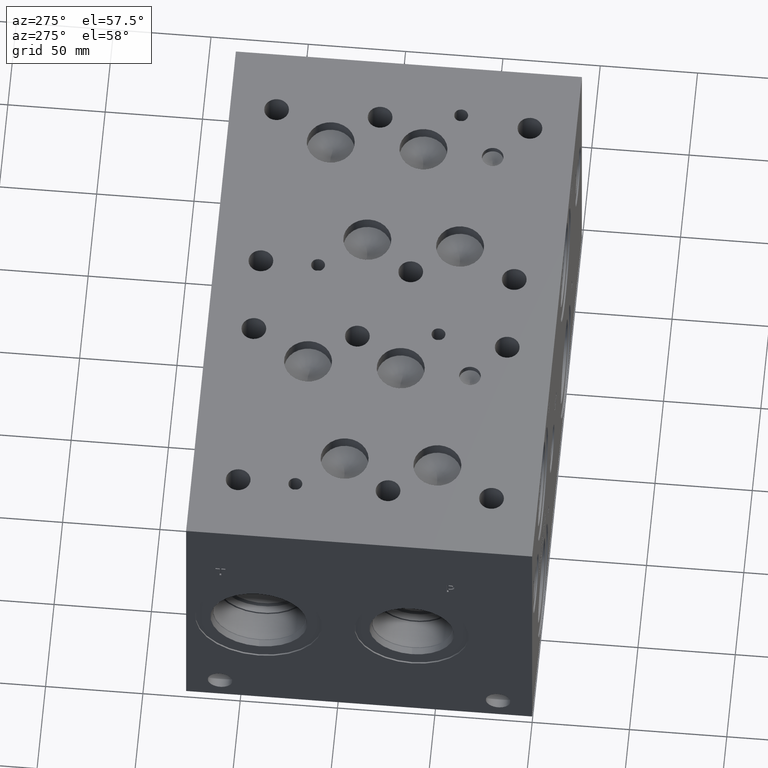
[diagram: clean part render]
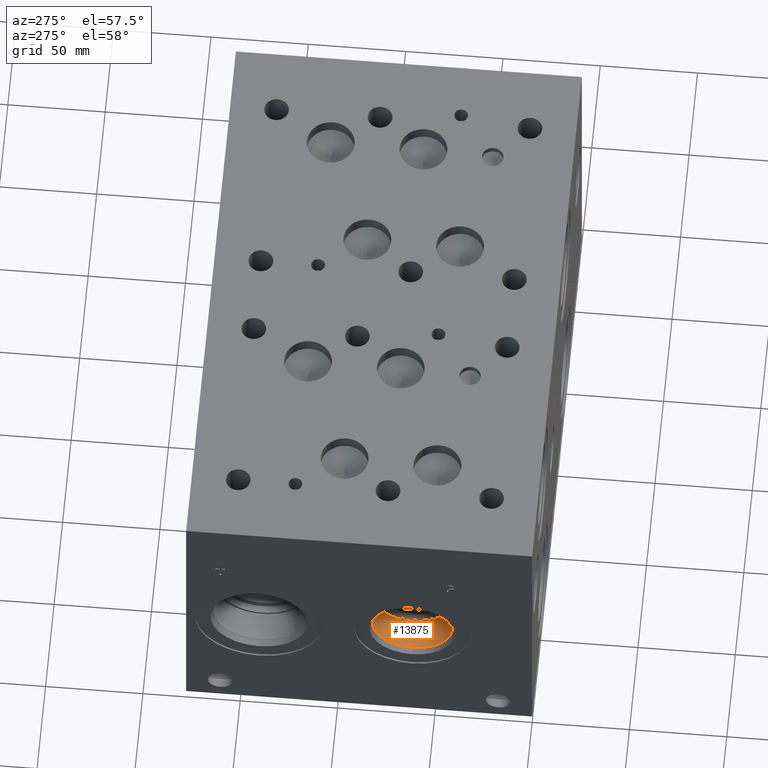
[diagram: same view with one face highlighted and labeled with its STEP entity id]
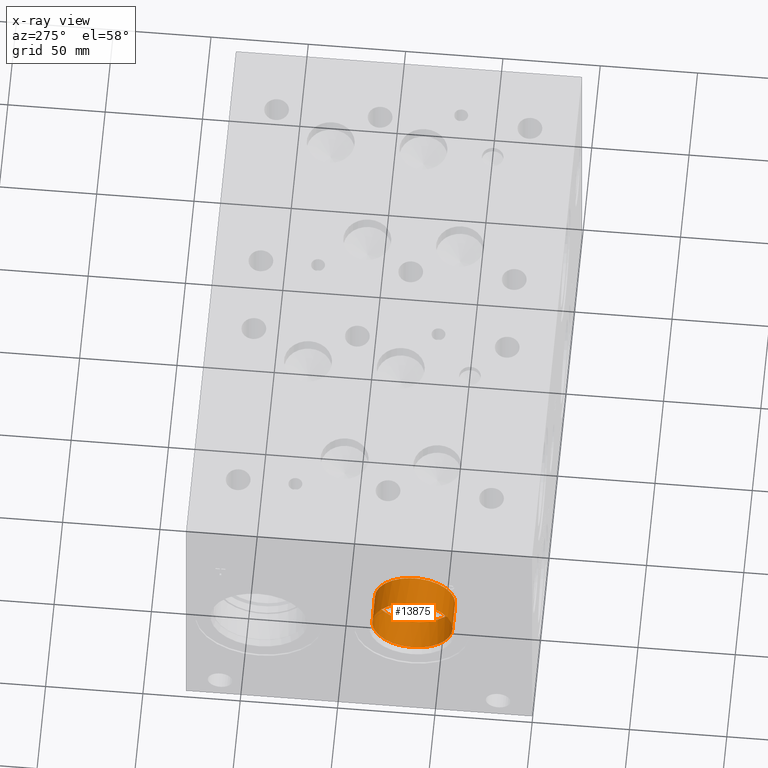
[diagram: x-ray of the same camera — body ghosted, the highlighted face saturated]
A machine part, auxiliary view. The second image highlights one B-rep face of the part: STEP entity #13875.
The next image is the same camera in x-ray: the body ghosted, the highlighted face saturated — about 0% of this face is hidden behind the body in this view.
In plain terms, the highlighted cylindrical surface (bore or boss wall) has radius 20.64 mm, axis along (-1, 0, 0).
Its self-contained STEP definition (entity closure, byte-faithful):
#43=CYLINDRICAL_SURFACE('',#14578,20.64);
#311=CIRCLE('',#14575,20.64);
#312=CIRCLE('',#14576,20.64);
#314=CIRCLE('',#14579,20.64);
#315=CIRCLE('',#14580,20.64);
#1758=FACE_OUTER_BOUND('',#2564,.T.);
#2564=EDGE_LOOP('',(#11625,#11626,#11627,#11628,#11629,#11630));
#3884=LINE('',#23451,#5124);
#5124=VECTOR('',#17168,20.64);
#6311=VERTEX_POINT('',#23441);
#6312=VERTEX_POINT('',#23442);
#6314=VERTEX_POINT('',#23448);
#6315=VERTEX_POINT('',#23449);
#8159=EDGE_CURVE('',#6311,#6312,#311,.T.);
#8160=EDGE_CURVE('',#6312,#6311,#312,.T.);
#8162=EDGE_CURVE('',#6314,#6315,#314,.T.);
#8163=EDGE_CURVE('',#6314,#6312,#3884,.T.);
#8164=EDGE_CURVE('',#6315,#6314,#315,.T.);
#11625=ORIENTED_EDGE('',*,*,#8162,.F.);
#11626=ORIENTED_EDGE('',*,*,#8163,.T.);
#11627=ORIENTED_EDGE('',*,*,#8159,.F.);
#11628=ORIENTED_EDGE('',*,*,#8160,.F.);
#11629=ORIENTED_EDGE('',*,*,#8163,.F.);
#11630=ORIENTED_EDGE('',*,*,#8164,.F.);
#13875=ADVANCED_FACE('',(#1758),#43,.F.);
#14575=AXIS2_PLACEMENT_3D('',#23443,#17158,#17159);
#14576=AXIS2_PLACEMENT_3D('',#23444,#17160,#17161);
#14578=AXIS2_PLACEMENT_3D('',#23447,#17164,#17165);
#14579=AXIS2_PLACEMENT_3D('',#23450,#17166,#17167);
#14580=AXIS2_PLACEMENT_3D('',#23452,#17169,#17170);
#17158=DIRECTION('center_axis',(-1.,0.,0.));
#17159=DIRECTION('ref_axis',(0.,1.,0.));
#17160=DIRECTION('center_axis',(-1.,0.,0.));
#17161=DIRECTION('ref_axis',(0.,1.,0.));
#17164=DIRECTION('center_axis',(-1.,0.,0.));
#17165=DIRECTION('ref_axis',(0.,1.,0.));
#17166=DIRECTION('center_axis',(1.,0.,0.));
#17167=DIRECTION('ref_axis',(0.,1.,0.));
#17168=DIRECTION('',(1.,0.,0.));
#17169=DIRECTION('center_axis',(1.,0.,0.));
#17170=DIRECTION('ref_axis',(0.,1.,0.));
#23441=CARTESIAN_POINT('',(19.8374,82.5652,71.4248));
#23442=CARTESIAN_POINT('',(19.8374,41.2852,71.4248));
#23443=CARTESIAN_POINT('Origin',(19.8374,61.9252,71.4248));
#23444=CARTESIAN_POINT('Origin',(19.8374,61.9252,71.4248));
#23447=CARTESIAN_POINT('Origin',(9.9187,61.9252,71.4248));
#23448=CARTESIAN_POINT('',(4.3028,41.2852,71.4248));
#23449=CARTESIAN_POINT('',(4.3028,61.9252,50.7848));
#23450=CARTESIAN_POINT('Origin',(4.3028,61.9252,71.4248));
#23451=CARTESIAN_POINT('',(9.9187,41.2852,71.4248));
#23452=CARTESIAN_POINT('Origin',(4.3028,61.9252,71.4248));